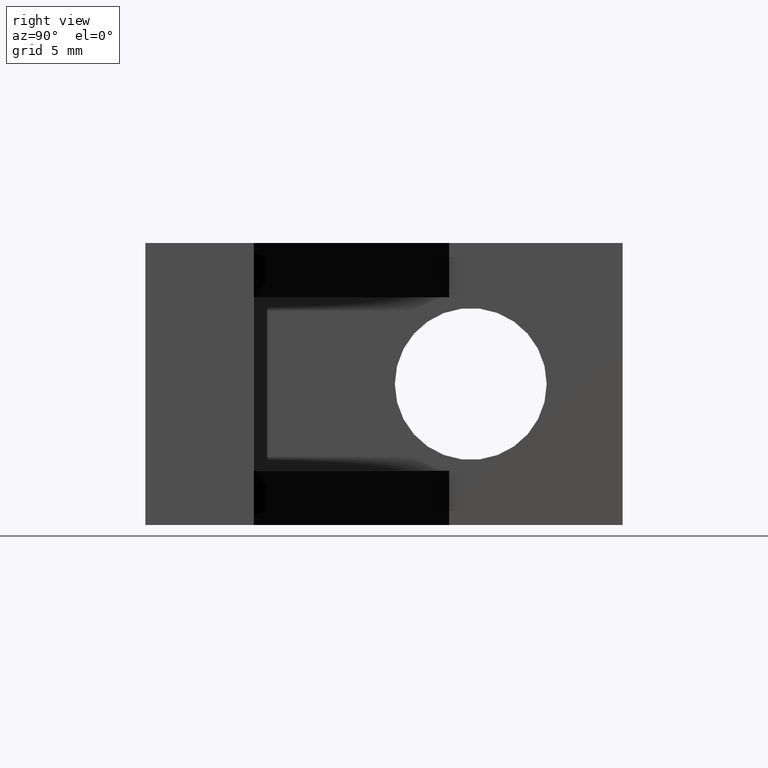
[diagram: clean part render]
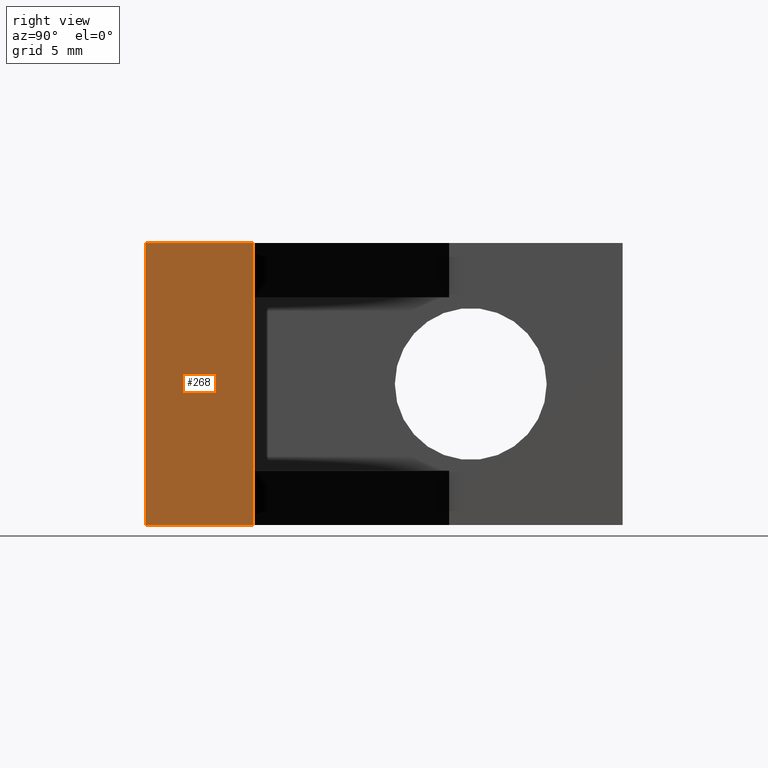
[diagram: same view with one face highlighted and labeled with its STEP entity id]
A machine part, right view. The second image highlights one B-rep face of the part: STEP entity #268.
In plain terms, the highlighted planar face has unit normal (-1, 0, 0).
Its self-contained STEP definition (entity closure, byte-faithful):
#20=PLANE('',#309);
#34=FACE_OUTER_BOUND('',#49,.T.);
#49=EDGE_LOOP('',(#204,#205,#206,#207));
#66=LINE('',#408,#98);
#69=LINE('',#414,#101);
#70=LINE('',#416,#102);
#71=LINE('',#417,#103);
#98=VECTOR('',#339,1000.);
#101=VECTOR('',#344,1000.);
#102=VECTOR('',#345,1000.);
#103=VECTOR('',#346,1000.);
#136=VERTEX_POINT('',#405);
#137=VERTEX_POINT('',#407);
#139=VERTEX_POINT('',#413);
#140=VERTEX_POINT('',#415);
#162=EDGE_CURVE('',#137,#136,#66,.T.);
#165=EDGE_CURVE('',#136,#139,#69,.T.);
#166=EDGE_CURVE('',#140,#139,#70,.T.);
#167=EDGE_CURVE('',#137,#140,#71,.T.);
#204=ORIENTED_EDGE('',*,*,#165,.T.);
#205=ORIENTED_EDGE('',*,*,#166,.F.);
#206=ORIENTED_EDGE('',*,*,#167,.F.);
#207=ORIENTED_EDGE('',*,*,#162,.T.);
#268=ADVANCED_FACE('',(#34),#20,.F.);
#309=AXIS2_PLACEMENT_3D('',#412,#342,#343);
#339=DIRECTION('',(0.,0.,-1.));
#342=DIRECTION('center_axis',(-1.,0.,0.));
#343=DIRECTION('ref_axis',(0.,0.,1.));
#344=DIRECTION('',(0.,1.,0.));
#345=DIRECTION('',(0.,0.,-1.));
#346=DIRECTION('',(0.,1.,0.));
#405=CARTESIAN_POINT('',(22.,-2.00439027118366E-15,-6.5));
#407=CARTESIAN_POINT('',(22.,-2.00439027118366E-15,6.5));
#408=CARTESIAN_POINT('',(22.,-2.00439027118366E-15,6.5));
#412=CARTESIAN_POINT('Origin',(22.,5.,6.5));
#413=CARTESIAN_POINT('',(22.,5.,-6.5));
#414=CARTESIAN_POINT('',(22.,5.,-6.5));
#415=CARTESIAN_POINT('',(22.,5.,6.5));
#416=CARTESIAN_POINT('',(22.,5.,6.5));
#417=CARTESIAN_POINT('',(22.,5.,6.5));